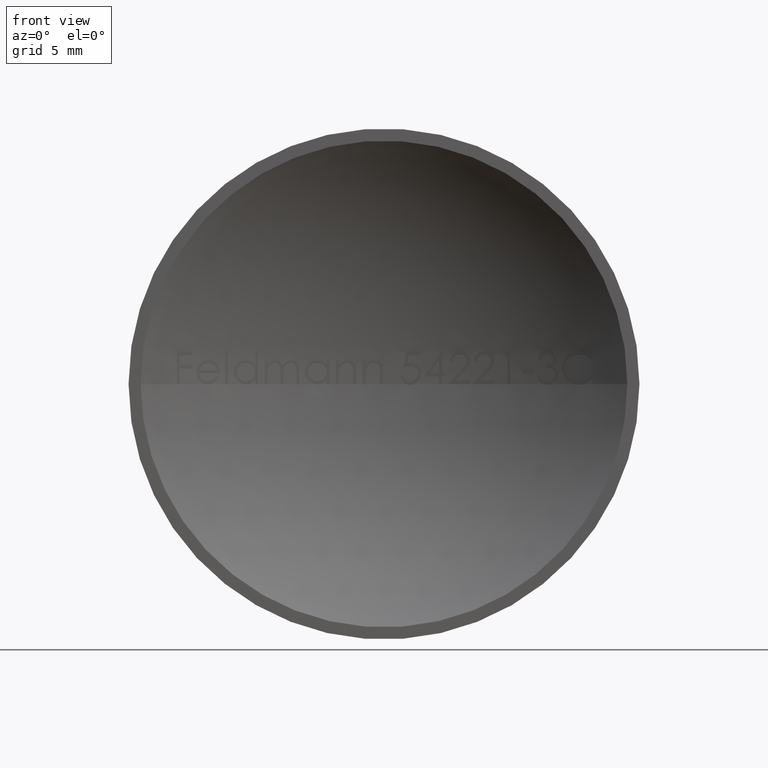
[diagram: clean part render]
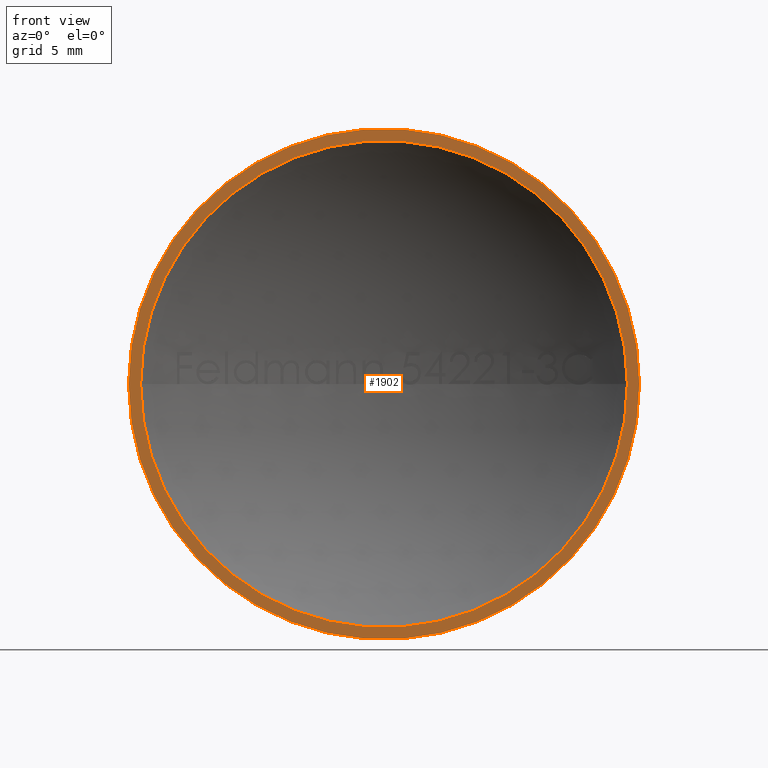
[diagram: same view with one face highlighted and labeled with its STEP entity id]
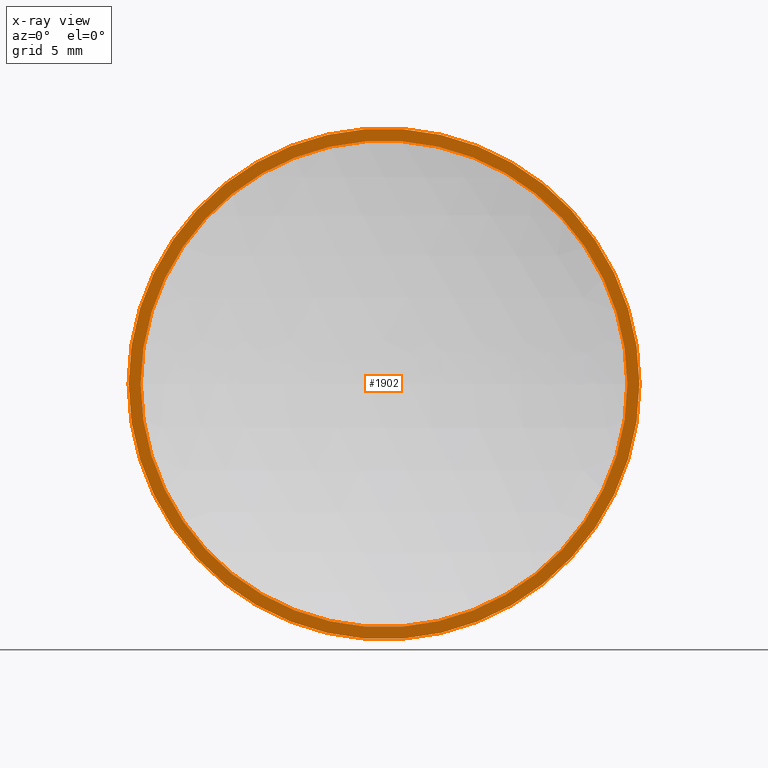
[diagram: x-ray of the same camera — body ghosted, the highlighted face saturated]
A machine part, front view. The second image highlights one B-rep face of the part: STEP entity #1902.
The next image is the same camera in x-ray: the body ghosted, the highlighted face saturated — about 0% of this face is hidden behind the body in this view.
In plain terms, the highlighted planar face has unit normal (-0, -1, 0).
Its self-contained STEP definition (entity closure, byte-faithful):
#121 = CARTESIAN_POINT ( 'NONE',  ( -1.635541477367388300E-014, 4.510281037539698400E-014, 0.0000000000000000000 ) ) ;
#260 = DIRECTION ( 'NONE',  ( -4.672975649621174500E-015, -1.000000000000000000, -0.0000000000000000000 ) ) ;
#329 = VERTEX_POINT ( 'NONE', #8360 ) ;
#391 = DIRECTION ( 'NONE',  ( 1.000000000000000000, -4.672975649621174500E-015, 0.0000000000000000000 ) ) ;
#514 = AXIS2_PLACEMENT_3D ( 'NONE', #10329, #260, #3085 ) ;
#869 = DIRECTION ( 'NONE',  ( -4.672975649621174500E-015, -1.000000000000000000, -0.0000000000000000000 ) ) ;
#1378 = DIRECTION ( 'NONE',  ( 1.000000000000000000, -4.672975649621174500E-015, 0.0000000000000000000 ) ) ;
#1902 = ADVANCED_FACE ( 'NONE', ( #11442, #11134 ), #9103, .T. ) ;
#1910 = DIRECTION ( 'NONE',  ( -4.672975649621174500E-015, -1.000000000000000000, 0.0000000000000000000 ) ) ;
#2160 = CARTESIAN_POINT ( 'NONE',  ( 10.65000000000000000, -4.664380293068598100E-015, 0.0000000000000000000 ) ) ;
#2558 = AXIS2_PLACEMENT_3D ( 'NONE', #121, #869, #8286 ) ;
#2819 = ORIENTED_EDGE ( 'NONE', *, *, #11441, .F. ) ;
#3085 = DIRECTION ( 'NONE',  ( 1.000000000000000000, -4.672975649621175200E-015, 0.0000000000000000000 ) ) ;
#3281 = ORIENTED_EDGE ( 'NONE', *, *, #4845, .T. ) ;
#3478 = VERTEX_POINT ( 'NONE', #3532 ) ;
#3532 = CARTESIAN_POINT ( 'NONE',  ( -10.14507269564880300, 9.417698004675970800E-014, 0.0000000000000000000 ) ) ;
#3630 = DIRECTION ( 'NONE',  ( 1.000000000000000000, -4.672975649621174500E-015, 0.0000000000000000000 ) ) ;
#4068 = DIRECTION ( 'NONE',  ( -4.672975649621174500E-015, -1.000000000000000000, -0.0000000000000000000 ) ) ;
#4328 = AXIS2_PLACEMENT_3D ( 'NONE', #8712, #6866, #391 ) ;
#4398 = AXIS2_PLACEMENT_3D ( 'NONE', #11449, #4068, #1378 ) ;
#4460 = AXIS2_PLACEMENT_3D ( 'NONE', #7367, #1910, #3630 ) ;
#4575 = ORIENTED_EDGE ( 'NONE', *, *, #6669, .T. ) ;
#4845 = EDGE_CURVE ( 'NONE', #6335, #9023, #6817, .T. ) ;
#4848 = CIRCLE ( 'NONE', #514, 10.65000000000001500 ) ;
#5928 = EDGE_LOOP ( 'NONE', ( #2819, #6034 ) ) ;
#6034 = ORIENTED_EDGE ( 'NONE', *, *, #9549, .F. ) ;
#6335 = VERTEX_POINT ( 'NONE', #8876 ) ;
#6669 = EDGE_CURVE ( 'NONE', #9023, #6335, #4848, .T. ) ;
#6817 = CIRCLE ( 'NONE', #2558, 10.65000000000001500 ) ;
#6866 = DIRECTION ( 'NONE',  ( -4.672975649621174500E-015, -1.000000000000000000, -0.0000000000000000000 ) ) ;
#7367 = CARTESIAN_POINT ( 'NONE',  ( 10.65000000000000000, -3.638234948319188900E-015, 0.0000000000000000000 ) ) ;
#7684 = CIRCLE ( 'NONE', #4398, 10.14507269564887100 ) ;
#8286 = DIRECTION ( 'NONE',  ( 1.000000000000000000, -4.672975649621175200E-015, 0.0000000000000000000 ) ) ;
#8360 = CARTESIAN_POINT ( 'NONE',  ( 10.14507269564885700, -9.355932130063190300E-016, -1.242413080384350000E-015 ) ) ;
#8712 = CARTESIAN_POINT ( 'NONE',  ( -1.635541477367387300E-014, 4.727121472036799300E-014, 0.0000000000000000000 ) ) ;
#8876 = CARTESIAN_POINT ( 'NONE',  ( -10.65000000000003100, 9.487000104386255700E-014, 1.304248841091933200E-015 ) ) ;
#9001 = CIRCLE ( 'NONE', #4328, 10.14507269564887100 ) ;
#9023 = VERTEX_POINT ( 'NONE', #2160 ) ;
#9103 = PLANE ( 'NONE',  #4460 ) ;
#9549 = EDGE_CURVE ( 'NONE', #329, #3478, #7684, .T. ) ;
#10329 = CARTESIAN_POINT ( 'NONE',  ( -1.635541477367388300E-014, 4.510281037539698400E-014, 0.0000000000000000000 ) ) ;
#10392 = EDGE_LOOP ( 'NONE', ( #4575, #3281 ) ) ;
#11134 = FACE_BOUND ( 'NONE', #5928, .T. ) ;
#11441 = EDGE_CURVE ( 'NONE', #3478, #329, #9001, .T. ) ;
#11442 = FACE_OUTER_BOUND ( 'NONE', #10392, .T. ) ;
#11449 = CARTESIAN_POINT ( 'NONE',  ( -1.635541477367387300E-014, 4.727121472036799300E-014, 0.0000000000000000000 ) ) ;